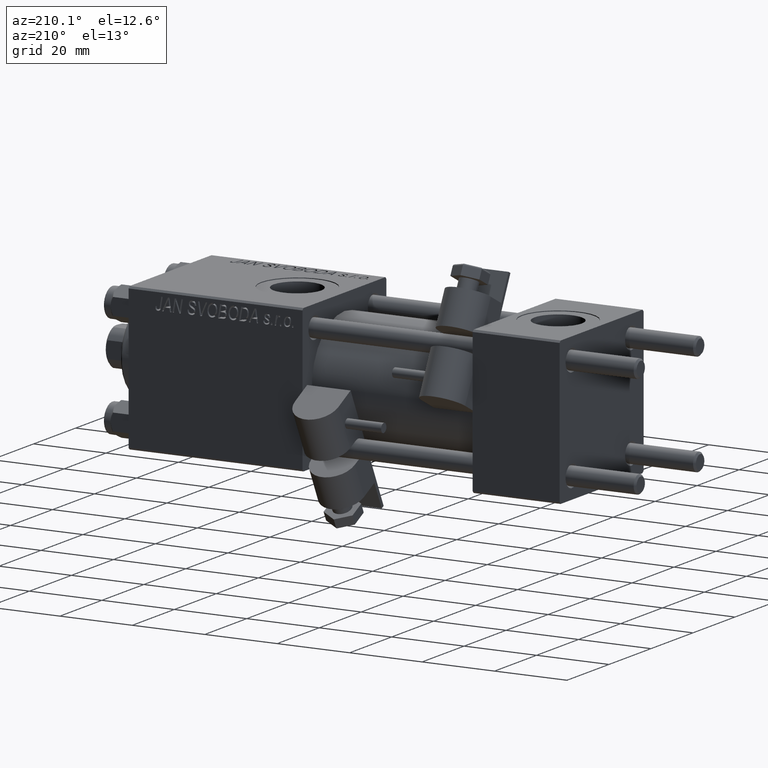
[diagram: clean part render]
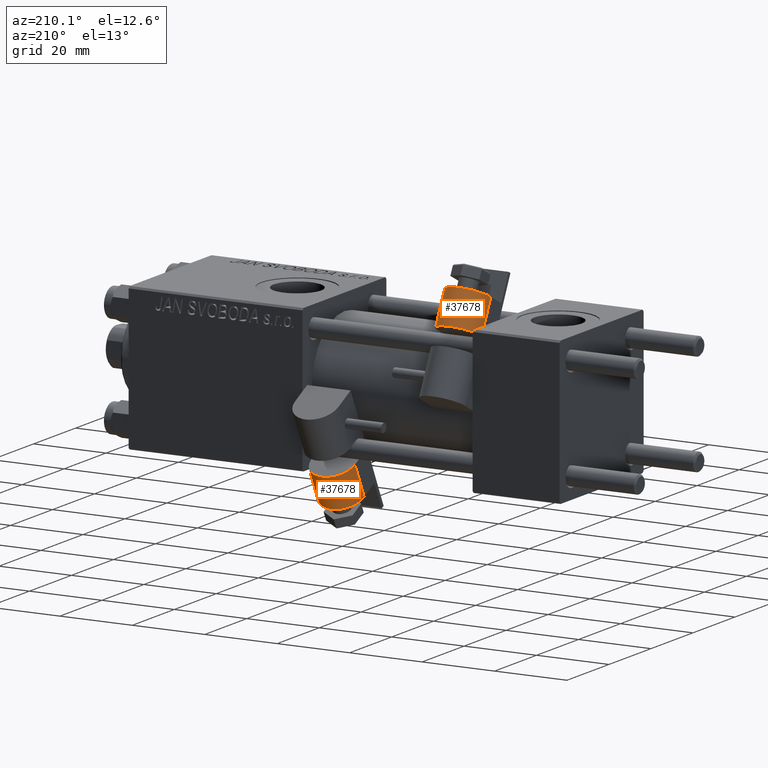
[diagram: same view with one multi-face feature highlighted, each face labeled with its STEP entity id]
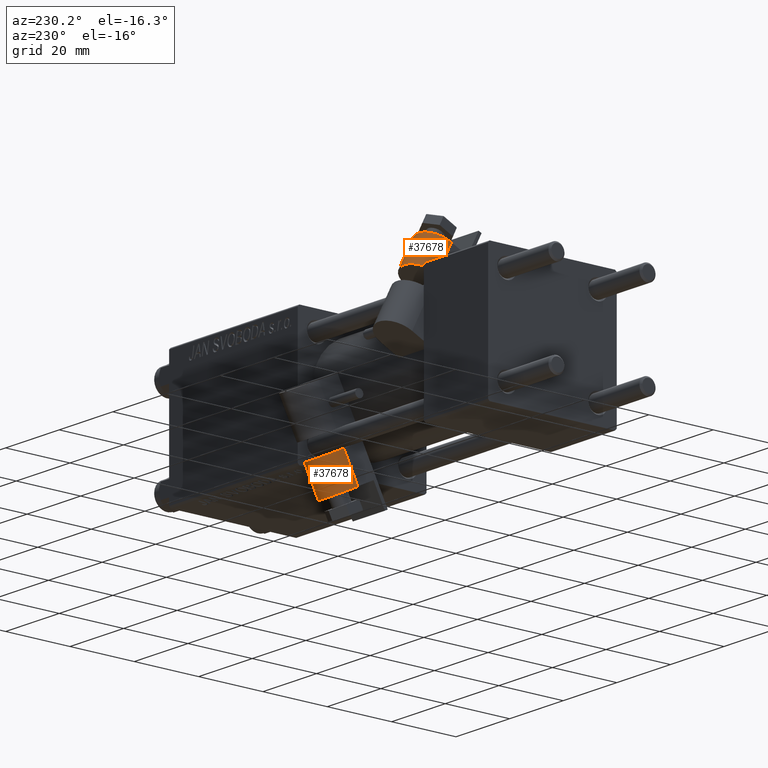
[diagram: same view with one multi-face feature highlighted, each face labeled with its STEP entity id]
A machine part, auxiliary view. The highlighted faces form ONE feature: a constant-radius fillet chain: 2 tangent blend faces with common blend radius 6 mm. The faces share edges in the B-rep.
A second angle (auxiliary view) of the same feature is appended — it is thin or edge-on in the first view.
Their STEP definitions:
[1] entity #37678 (Cylinder):
#597 = CARTESIAN_POINT ( 'NONE',  ( 0.000000000000000000, 6.500000000000000000, -5.999999999999997335 ) ) ;
#1276 = DIRECTION ( 'NONE',  ( -1.000000000000000000, -0.000000000000000000, -0.000000000000000000 ) ) ;
#1446 = DIRECTION ( 'NONE',  ( -1.000000000000000000, -0.000000000000000000, -0.000000000000000000 ) ) ;
#2372 = VECTOR ( 'NONE', #1276, 1000.000000000000000 ) ;
#4047 = VERTEX_POINT ( 'NONE', #28935 ) ;
#4295 = CARTESIAN_POINT ( 'NONE',  ( 0.000000000000000000, 6.499999999999999112, 1.734723475976807094E-15 ) ) ;
#5403 = CARTESIAN_POINT ( 'NONE',  ( 9.740000000000000213, 6.499999999999998224, 6.000000000000000000 ) ) ;
#8504 = AXIS2_PLACEMENT_3D ( 'NONE', #4295, #35916, #12768 ) ;
#8805 = VERTEX_POINT ( 'NONE', #597 ) ;
#9177 = CARTESIAN_POINT ( 'NONE',  ( 9.740000000000000213, 6.500000000000000000, -5.999999999999997335 ) ) ;
#10402 = EDGE_LOOP ( 'NONE', ( #44858, #34033, #11870, #31194 ) ) ;
#11213 = FACE_OUTER_BOUND ( 'NONE', #10402, .T. ) ;
#11870 = ORIENTED_EDGE ( 'NONE', *, *, #26245, .F. ) ;
#12768 = DIRECTION ( 'NONE',  ( 0.000000000000000000, 0.000000000000000000, -1.000000000000000000 ) ) ;
#14186 = DIRECTION ( 'NONE',  ( 1.000000000000000000, 0.000000000000000000, 0.000000000000000000 ) ) ;
#21018 = EDGE_CURVE ( 'NONE', #8805, #45443, #37270, .T. ) ;
#25515 = EDGE_CURVE ( 'NONE', #49524, #8805, #28984, .T. ) ;
#25999 = VECTOR ( 'NONE', #1446, 1000.000000000000000 ) ;
#26245 = EDGE_CURVE ( 'NONE', #49524, #4047, #50620, .T. ) ;
#26908 = CYLINDRICAL_SURFACE ( 'NONE', #43505, 5.999999999999998224 ) ;
#27161 = DIRECTION ( 'NONE',  ( 0.000000000000000000, 0.000000000000000000, 1.000000000000000000 ) ) ;
#28813 = LINE ( 'NONE', #5403, #2372 ) ;
#28935 = CARTESIAN_POINT ( 'NONE',  ( 9.740000000000000213, 6.499999999999998224, 6.000000000000000000 ) ) ;
#28984 = LINE ( 'NONE', #9177, #25999 ) ;
#29882 = DIRECTION ( 'NONE',  ( 0.000000000000000000, 0.000000000000000000, -1.000000000000000000 ) ) ;
#31194 = ORIENTED_EDGE ( 'NONE', *, *, #25515, .T. ) ;
#34033 = ORIENTED_EDGE ( 'NONE', *, *, #36305, .F. ) ;
#35508 = CARTESIAN_POINT ( 'NONE',  ( 9.740000000000000213, 6.500000000000000000, -5.999999999999997335 ) ) ;
#35916 = DIRECTION ( 'NONE',  ( 1.000000000000000000, 0.000000000000000000, 0.000000000000000000 ) ) ;
#36305 = EDGE_CURVE ( 'NONE', #4047, #45443, #28813, .T. ) ;
#37270 = CIRCLE ( 'NONE', #8504, 5.999999999999998224 ) ;
#37678 = ADVANCED_FACE ( 'NONE', ( #11213 ), #26908, .T. ) ;
#42879 = CARTESIAN_POINT ( 'NONE',  ( 0.000000000000000000, 6.499999999999998224, 6.000000000000000000 ) ) ;
#43505 = AXIS2_PLACEMENT_3D ( 'NONE', #50292, #47193, #27161 ) ;
#44858 = ORIENTED_EDGE ( 'NONE', *, *, #21018, .T. ) ;
#45443 = VERTEX_POINT ( 'NONE', #42879 ) ;
#45729 = AXIS2_PLACEMENT_3D ( 'NONE', #49654, #14186, #29882 ) ;
#47193 = DIRECTION ( 'NONE',  ( -1.000000000000000000, -0.000000000000000000, -0.000000000000000000 ) ) ;
#49524 = VERTEX_POINT ( 'NONE', #35508 ) ;
#49654 = CARTESIAN_POINT ( 'NONE',  ( 9.740000000000000213, 6.499999999999999112, 1.734723475976807094E-15 ) ) ;
#50292 = CARTESIAN_POINT ( 'NONE',  ( 9.740000000000000213, 6.499999999999999112, 1.734723475976807094E-15 ) ) ;
#50620 = CIRCLE ( 'NONE', #45729, 5.999999999999998224 ) ;
[2] entity #37678 (Cylinder):
#597 = CARTESIAN_POINT ( 'NONE',  ( 0.000000000000000000, 6.500000000000000000, -5.999999999999997335 ) ) ;
#1276 = DIRECTION ( 'NONE',  ( -1.000000000000000000, -0.000000000000000000, -0.000000000000000000 ) ) ;
#1446 = DIRECTION ( 'NONE',  ( -1.000000000000000000, -0.000000000000000000, -0.000000000000000000 ) ) ;
#2372 = VECTOR ( 'NONE', #1276, 1000.000000000000000 ) ;
#4047 = VERTEX_POINT ( 'NONE', #28935 ) ;
#4295 = CARTESIAN_POINT ( 'NONE',  ( 0.000000000000000000, 6.499999999999999112, 1.734723475976807094E-15 ) ) ;
#5403 = CARTESIAN_POINT ( 'NONE',  ( 9.740000000000000213, 6.499999999999998224, 6.000000000000000000 ) ) ;
#8504 = AXIS2_PLACEMENT_3D ( 'NONE', #4295, #35916, #12768 ) ;
#8805 = VERTEX_POINT ( 'NONE', #597 ) ;
#9177 = CARTESIAN_POINT ( 'NONE',  ( 9.740000000000000213, 6.500000000000000000, -5.999999999999997335 ) ) ;
#10402 = EDGE_LOOP ( 'NONE', ( #44858, #34033, #11870, #31194 ) ) ;
#11213 = FACE_OUTER_BOUND ( 'NONE', #10402, .T. ) ;
#11870 = ORIENTED_EDGE ( 'NONE', *, *, #26245, .F. ) ;
#12768 = DIRECTION ( 'NONE',  ( 0.000000000000000000, 0.000000000000000000, -1.000000000000000000 ) ) ;
#14186 = DIRECTION ( 'NONE',  ( 1.000000000000000000, 0.000000000000000000, 0.000000000000000000 ) ) ;
#21018 = EDGE_CURVE ( 'NONE', #8805, #45443, #37270, .T. ) ;
#25515 = EDGE_CURVE ( 'NONE', #49524, #8805, #28984, .T. ) ;
#25999 = VECTOR ( 'NONE', #1446, 1000.000000000000000 ) ;
#26245 = EDGE_CURVE ( 'NONE', #49524, #4047, #50620, .T. ) ;
#26908 = CYLINDRICAL_SURFACE ( 'NONE', #43505, 5.999999999999998224 ) ;
#27161 = DIRECTION ( 'NONE',  ( 0.000000000000000000, 0.000000000000000000, 1.000000000000000000 ) ) ;
#28813 = LINE ( 'NONE', #5403, #2372 ) ;
#28935 = CARTESIAN_POINT ( 'NONE',  ( 9.740000000000000213, 6.499999999999998224, 6.000000000000000000 ) ) ;
#28984 = LINE ( 'NONE', #9177, #25999 ) ;
#29882 = DIRECTION ( 'NONE',  ( 0.000000000000000000, 0.000000000000000000, -1.000000000000000000 ) ) ;
#31194 = ORIENTED_EDGE ( 'NONE', *, *, #25515, .T. ) ;
#34033 = ORIENTED_EDGE ( 'NONE', *, *, #36305, .F. ) ;
#35508 = CARTESIAN_POINT ( 'NONE',  ( 9.740000000000000213, 6.500000000000000000, -5.999999999999997335 ) ) ;
#35916 = DIRECTION ( 'NONE',  ( 1.000000000000000000, 0.000000000000000000, 0.000000000000000000 ) ) ;
#36305 = EDGE_CURVE ( 'NONE', #4047, #45443, #28813, .T. ) ;
#37270 = CIRCLE ( 'NONE', #8504, 5.999999999999998224 ) ;
#37678 = ADVANCED_FACE ( 'NONE', ( #11213 ), #26908, .T. ) ;
#42879 = CARTESIAN_POINT ( 'NONE',  ( 0.000000000000000000, 6.499999999999998224, 6.000000000000000000 ) ) ;
#43505 = AXIS2_PLACEMENT_3D ( 'NONE', #50292, #47193, #27161 ) ;
#44858 = ORIENTED_EDGE ( 'NONE', *, *, #21018, .T. ) ;
#45443 = VERTEX_POINT ( 'NONE', #42879 ) ;
#45729 = AXIS2_PLACEMENT_3D ( 'NONE', #49654, #14186, #29882 ) ;
#47193 = DIRECTION ( 'NONE',  ( -1.000000000000000000, -0.000000000000000000, -0.000000000000000000 ) ) ;
#49524 = VERTEX_POINT ( 'NONE', #35508 ) ;
#49654 = CARTESIAN_POINT ( 'NONE',  ( 9.740000000000000213, 6.499999999999999112, 1.734723475976807094E-15 ) ) ;
#50292 = CARTESIAN_POINT ( 'NONE',  ( 9.740000000000000213, 6.499999999999999112, 1.734723475976807094E-15 ) ) ;
#50620 = CIRCLE ( 'NONE', #45729, 5.999999999999998224 ) ;